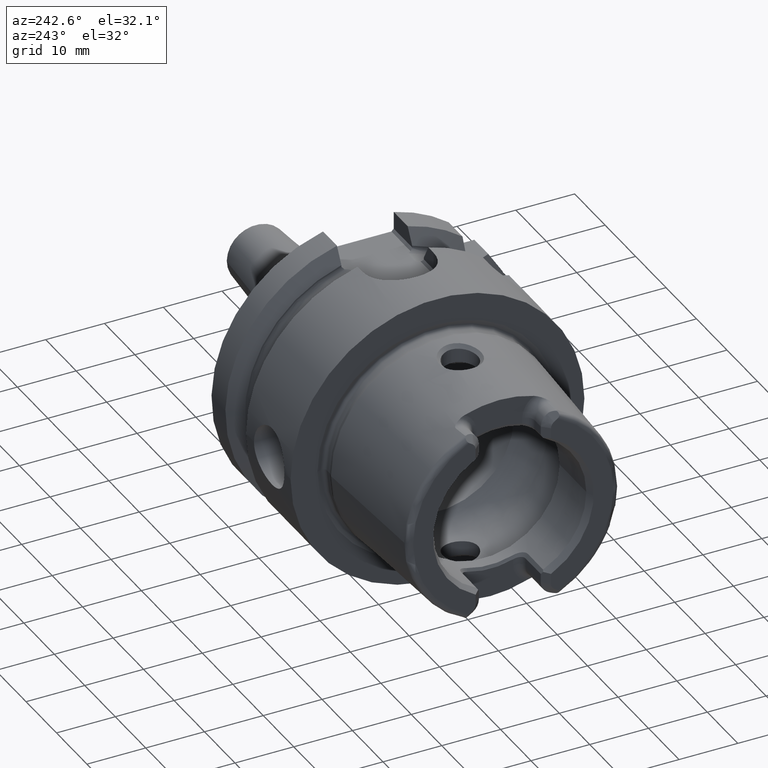
[diagram: clean part render]
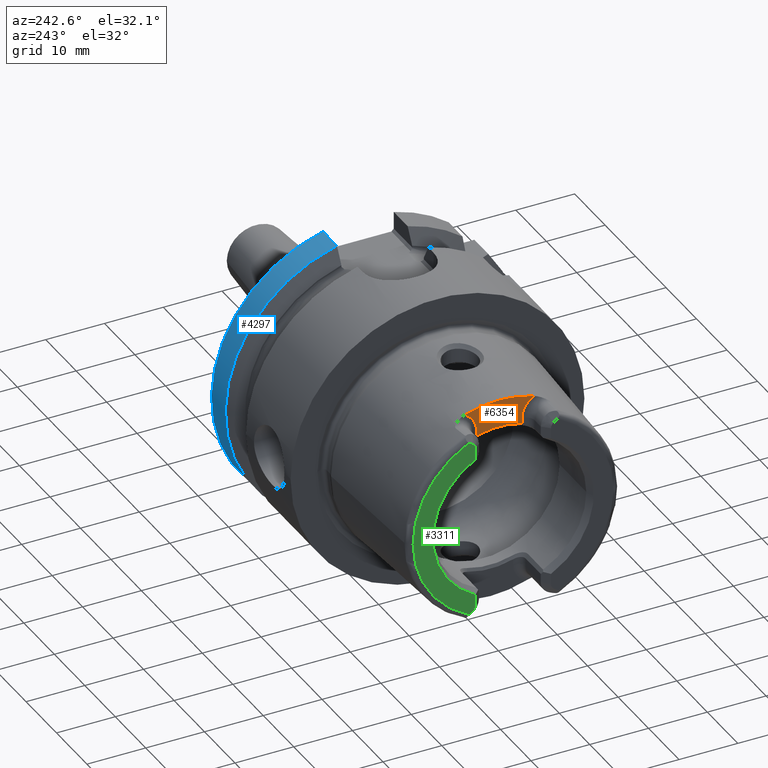
[diagram: same view with three faces highlighted in distinct colors, each labeled with its STEP entity id]
A machine part, auxiliary view with three faces highlighted in distinct colors.
Their STEP definitions:

[orange] entity #6354 — the highlighted planar face has unit normal (-1, 0, 0).
#8=CARTESIAN_POINT('',(-2.03E1,0.E0,0.E0));
#9=DIRECTION('',(1.E0,0.E0,0.E0));
#10=DIRECTION('',(0.E0,3.252089046527E-1,9.456421988969E-1));
#11=AXIS2_PLACEMENT_3D('',#8,#9,#10);
#2588=DIRECTION('',(0.E0,1.605967836501E-11,1.E0));
#2589=VECTOR('',#2588,9.474000707151E-1);
#2590=CARTESIAN_POINT('',(-2.03E1,3.869999999992E0,1.293259992922E1));
#2591=LINE('',#2590,#2589);
#2592=CARTESIAN_POINT('',(-2.03E1,7.65E0,1.388E1));
#2593=DIRECTION('',(-1.E0,0.E0,0.E0));
#2594=DIRECTION('',(0.E0,-1.E0,0.E0));
#2595=AXIS2_PLACEMENT_3D('',#2592,#2593,#2594);
#2597=CARTESIAN_POINT('',(-2.03E1,-7.65E0,1.388E1));
#2598=DIRECTION('',(-1.E0,0.E0,0.E0));
#2599=DIRECTION('',(0.E0,4.547221569343E-1,8.906333476762E-1));
#2600=AXIS2_PLACEMENT_3D('',#2597,#2598,#2599);
#2602=DIRECTION('',(0.E0,2.687081703110E-11,-1.E0));
#2603=VECTOR('',#2602,9.474000706860E-1);
#2604=CARTESIAN_POINT('',(-2.03E1,-3.870000000016E0,1.387999999991E1));
#2605=LINE('',#2604,#2603);
#2606=CARTESIAN_POINT('',(-2.03E1,3.869999999992E0,1.293259992922E1));
#2607=CARTESIAN_POINT('',(-2.03E1,3.367341739340E0,1.308906659587E1));
#2608=CARTESIAN_POINT('',(-2.03E1,2.351605461968E0,1.333894307947E1));
#2609=CARTESIAN_POINT('',(-2.03E1,7.869237642455E-1,1.352896153447E1));
#2610=CARTESIAN_POINT('',(-2.03E1,-7.869237642206E-1,1.352896153447E1));
#2611=CARTESIAN_POINT('',(-2.03E1,-2.351605461924E0,1.333894307948E1));
#2612=CARTESIAN_POINT('',(-2.03E1,-3.367341739321E0,1.308906659588E1));
#2613=CARTESIAN_POINT('',(-2.03E1,-3.869999999991E0,1.293259992922E1));
#2764=CARTESIAN_POINT('',(-2.03E1,3.87E0,1.388E1));
#2766=VERTEX_POINT('',#2764);
#2768=CARTESIAN_POINT('',(-2.03E1,-3.87E0,1.388E1));
#2770=VERTEX_POINT('',#2768);
#2772=CARTESIAN_POINT('',(-2.03E1,5.931150246788E0,1.724659405422E1));
#2773=VERTEX_POINT('',#2772);
#2778=CARTESIAN_POINT('',(-2.03E1,-5.931150246788E0,1.724659405422E1));
#2779=VERTEX_POINT('',#2778);
#2811=CARTESIAN_POINT('',(-2.03E1,3.869999999992E0,1.293259992922E1));
#2812=VERTEX_POINT('',#2811);
#2813=CARTESIAN_POINT('',(-2.03E1,-3.869999999991E0,1.293259992922E1));
#2814=VERTEX_POINT('',#2813);
#6339=CARTESIAN_POINT('',(-2.03E1,0.E0,0.E0));
#6340=DIRECTION('',(-1.E0,0.E0,0.E0));
#6341=DIRECTION('',(0.E0,0.E0,1.E0));
#6342=AXIS2_PLACEMENT_3D('',#6339,#6340,#6341);
#6343=PLANE('',#6342);
#6344=ORIENTED_EDGE('',*,*,#3447,.T.);
#6345=ORIENTED_EDGE('',*,*,#3465,.T.);
#6346=ORIENTED_EDGE('',*,*,#3227,.T.);
#6348=ORIENTED_EDGE('',*,*,#6347,.T.);
#6350=ORIENTED_EDGE('',*,*,#6349,.T.);
#6351=ORIENTED_EDGE('',*,*,#6330,.F.);
#6352=EDGE_LOOP('',(#6344,#6345,#6346,#6348,#6350,#6351));
#6353=FACE_OUTER_BOUND('',#6352,.F.);
#6354=ADVANCED_FACE('',(#6353),#6343,.T.);
#12=CIRCLE('',#11,1.823797E1);
#2596=CIRCLE('',#2595,3.78E0);
#2601=CIRCLE('',#2600,3.78E0);
#2614=B_SPLINE_CURVE_WITH_KNOTS('',3,(#2606,#2607,#2608,#2609,#2610,#2611,#2612,
#2613),.UNSPECIFIED.,.F.,.F.,(4,1,1,1,1,4),(0.E0,2.E-1,4.E-1,6.E-1,8.E-1,1.E0),
.UNSPECIFIED.);
#3227=EDGE_CURVE('',#2773,#2779,#12,.T.);
#3447=EDGE_CURVE('',#2812,#2766,#2591,.T.);
#3465=EDGE_CURVE('',#2766,#2773,#2596,.T.);
#6330=EDGE_CURVE('',#2812,#2814,#2614,.T.);
#6347=EDGE_CURVE('',#2779,#2770,#2601,.T.);
#6349=EDGE_CURVE('',#2770,#2814,#2605,.T.);

[blue] entity #4297 — the highlighted cylindrical surface (partial cylindrical patch) has radius 25 mm, axis along (1, 0, 0).
#1037=CARTESIAN_POINT('',(2.139193283149E1,0.E0,0.E0));
#1038=DIRECTION('',(-1.E0,0.E0,0.E0));
#1039=DIRECTION('',(0.E0,2.407E-1,9.705995621264E-1));
#1040=AXIS2_PLACEMENT_3D('',#1037,#1038,#1039);
#1042=DIRECTION('',(1.E0,0.E0,0.E0));
#1043=VECTOR('',#1042,4.558067168511E0);
#1044=CARTESIAN_POINT('',(2.139193283149E1,7.0175E0,-2.399488890889E1));
#1045=LINE('',#1044,#1043);
#1046=CARTESIAN_POINT('',(2.595E1,0.E0,0.E0));
#1047=DIRECTION('',(1.E0,0.E0,0.E0));
#1048=DIRECTION('',(0.E0,2.807E-1,-9.597955563556E-1));
#1049=AXIS2_PLACEMENT_3D('',#1046,#1047,#1048);
#1051=DIRECTION('',(1.E0,0.E0,0.E0));
#1052=VECTOR('',#1051,4.558067168511E0);
#1053=CARTESIAN_POINT('',(2.139193283149E1,6.0175E0,2.426498905316E1));
#1054=LINE('',#1053,#1052);
#1415=CARTESIAN_POINT('',(2.139193283149E1,7.0175E0,-2.399488890889E1));
#1468=CARTESIAN_POINT('',(2.139193283149E1,6.0175E0,2.426498905316E1));
#2927=VERTEX_POINT('',#1468);
#2937=VERTEX_POINT('',#1415);
#3134=CARTESIAN_POINT('',(2.595E1,6.0175E0,2.426498905316E1));
#3135=VERTEX_POINT('',#3134);
#3140=CARTESIAN_POINT('',(2.595E1,7.0175E0,-2.399488890889E1));
#3141=VERTEX_POINT('',#3140);
#4282=CARTESIAN_POINT('',(-2.74425E1,0.E0,0.E0));
#4283=DIRECTION('',(1.E0,0.E0,0.E0));
#4284=DIRECTION('',(0.E0,-1.E0,0.E0));
#4285=AXIS2_PLACEMENT_3D('',#4282,#4283,#4284);
#4286=CYLINDRICAL_SURFACE('',#4285,2.5E1);
#4288=ORIENTED_EDGE('',*,*,#4287,.T.);
#4290=ORIENTED_EDGE('',*,*,#4289,.T.);
#4292=ORIENTED_EDGE('',*,*,#4291,.T.);
#4294=ORIENTED_EDGE('',*,*,#4293,.F.);
#4295=EDGE_LOOP('',(#4288,#4290,#4292,#4294));
#4296=FACE_OUTER_BOUND('',#4295,.F.);
#4297=ADVANCED_FACE('',(#4296),#4286,.T.);
#1041=CIRCLE('',#1040,2.5E1);
#1050=CIRCLE('',#1049,2.5E1);
#4287=EDGE_CURVE('',#2927,#2937,#1041,.T.);
#4289=EDGE_CURVE('',#2937,#3141,#1045,.T.);
#4291=EDGE_CURVE('',#3141,#3135,#1050,.T.);
#4293=EDGE_CURVE('',#2927,#3135,#1054,.T.);

[green] entity #3311 — the highlighted planar face has unit normal (1, 0, 0).
#86=DIRECTION('',(0.E0,0.E0,1.E0));
#87=VECTOR('',#86,1.794408024424E0);
#88=CARTESIAN_POINT('',(-2.49E1,6.42E0,-1.388E1));
#89=LINE('',#88,#87);
#90=CARTESIAN_POINT('',(-2.49E1,7.65E0,-1.388E1));
#91=DIRECTION('',(1.E0,0.E0,0.E0));
#92=DIRECTION('',(0.E0,-1.E0,0.E0));
#93=AXIS2_PLACEMENT_3D('',#90,#91,#92);
#95=DIRECTION('',(0.E0,-8.262563907023E-1,5.632942187025E-1));
#96=VECTOR('',#95,7.112027059277E-1);
#97=CARTESIAN_POINT('',(-2.49E1,7.544783891853E0,-1.529691173314E1));
#98=LINE('',#97,#96);
#99=DIRECTION('',(0.E0,-8.262563907023E-1,-5.632942187025E-1));
#100=VECTOR('',#99,7.112027059277E-1);
#101=CARTESIAN_POINT('',(-2.49E1,7.544783891853E0,1.529691173314E1));
#102=LINE('',#101,#100);
#103=CARTESIAN_POINT('',(-2.49E1,7.65E0,1.388E1));
#104=DIRECTION('',(-1.E0,0.E0,0.E0));
#105=DIRECTION('',(0.E0,-1.E0,-1.444192552358E-14));
#106=AXIS2_PLACEMENT_3D('',#103,#104,#105);
#108=DIRECTION('',(0.E0,0.E0,1.E0));
#109=VECTOR('',#108,1.794408024424E0);
#110=CARTESIAN_POINT('',(-2.49E1,6.42E0,1.208559197558E1));
#111=LINE('',#110,#109);
#143=CARTESIAN_POINT('',(-2.49E1,0.E0,0.E0));
#144=DIRECTION('',(1.E0,0.E0,0.E0));
#145=DIRECTION('',(0.E0,4.691283988580E-1,-8.831299708338E-1));
#146=AXIS2_PLACEMENT_3D('',#143,#144,#145);
#344=CARTESIAN_POINT('',(-2.49E1,0.E0,0.E0));
#345=DIRECTION('',(-1.E0,0.E0,0.E0));
#346=DIRECTION('',(0.E0,4.423444250631E-1,8.968452539962E-1));
#347=AXIS2_PLACEMENT_3D('',#344,#345,#346);
#2839=CARTESIAN_POINT('',(-2.49E1,6.42E0,1.208559197558E1));
#2840=CARTESIAN_POINT('',(-2.49E1,6.42E0,1.388E1));
#2841=VERTEX_POINT('',#2839);
#2842=VERTEX_POINT('',#2840);
#2843=CARTESIAN_POINT('',(-2.49E1,6.957148110996E0,1.489629536056E1));
#2844=VERTEX_POINT('',#2843);
#2845=CARTESIAN_POINT('',(-2.49E1,7.544783891853E0,1.529691173314E1));
#2846=VERTEX_POINT('',#2845);
#2871=CARTESIAN_POINT('',(-2.49E1,6.42E0,-1.388E1));
#2872=CARTESIAN_POINT('',(-2.49E1,6.42E0,-1.208559197558E1));
#2873=VERTEX_POINT('',#2871);
#2874=VERTEX_POINT('',#2872);
#2875=CARTESIAN_POINT('',(-2.49E1,6.957148110996E0,-1.489629536056E1));
#2876=VERTEX_POINT('',#2875);
#2877=CARTESIAN_POINT('',(-2.49E1,7.544783891853E0,-1.529691173314E1));
#2878=VERTEX_POINT('',#2877);
#3288=CARTESIAN_POINT('',(-2.49E1,0.E0,0.E0));
#3289=DIRECTION('',(1.E0,0.E0,0.E0));
#3290=DIRECTION('',(0.E0,-1.E0,0.E0));
#3291=AXIS2_PLACEMENT_3D('',#3288,#3289,#3290);
#3292=PLANE('',#3291);
#3294=ORIENTED_EDGE('',*,*,#3293,.F.);
#3296=ORIENTED_EDGE('',*,*,#3295,.T.);
#3298=ORIENTED_EDGE('',*,*,#3297,.F.);
#3300=ORIENTED_EDGE('',*,*,#3299,.F.);
#3302=ORIENTED_EDGE('',*,*,#3301,.T.);
#3304=ORIENTED_EDGE('',*,*,#3303,.F.);
#3306=ORIENTED_EDGE('',*,*,#3305,.F.);
#3308=ORIENTED_EDGE('',*,*,#3307,.F.);
#3309=EDGE_LOOP('',(#3294,#3296,#3298,#3300,#3302,#3304,#3306,#3308));
#3310=FACE_OUTER_BOUND('',#3309,.F.);
#3311=ADVANCED_FACE('',(#3310),#3292,.F.);
#94=CIRCLE('',#93,1.23E0);
#107=CIRCLE('',#106,1.23E0);
#147=CIRCLE('',#146,1.368495280957E1);
#348=CIRCLE('',#347,1.705635578153E1);
#3293=EDGE_CURVE('',#2873,#2874,#89,.T.);
#3295=EDGE_CURVE('',#2873,#2876,#94,.T.);
#3297=EDGE_CURVE('',#2878,#2876,#98,.T.);
#3299=EDGE_CURVE('',#2846,#2878,#348,.T.);
#3301=EDGE_CURVE('',#2846,#2844,#102,.T.);
#3303=EDGE_CURVE('',#2842,#2844,#107,.T.);
#3305=EDGE_CURVE('',#2841,#2842,#111,.T.);
#3307=EDGE_CURVE('',#2874,#2841,#147,.T.);